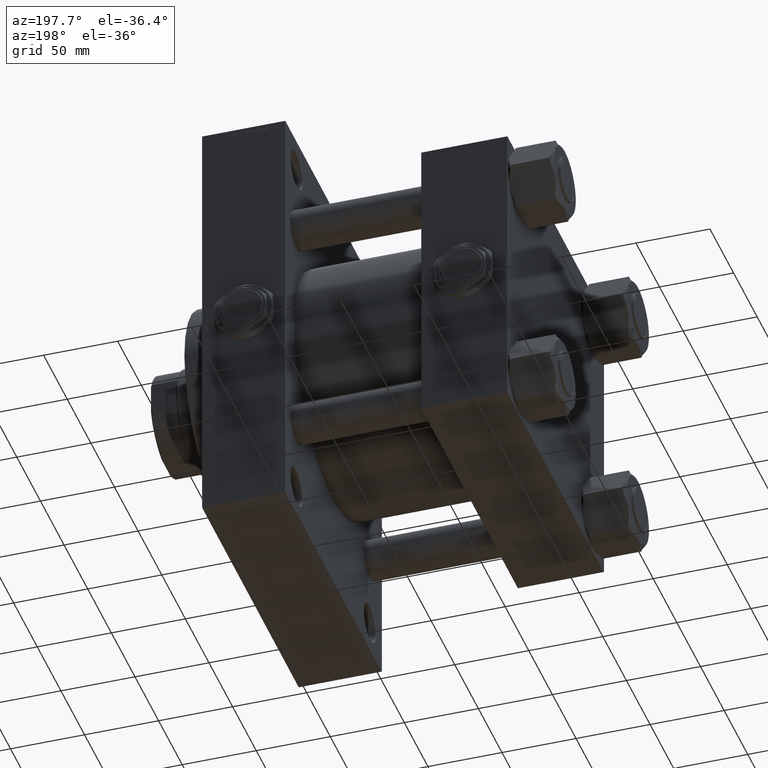
[diagram: clean part render]
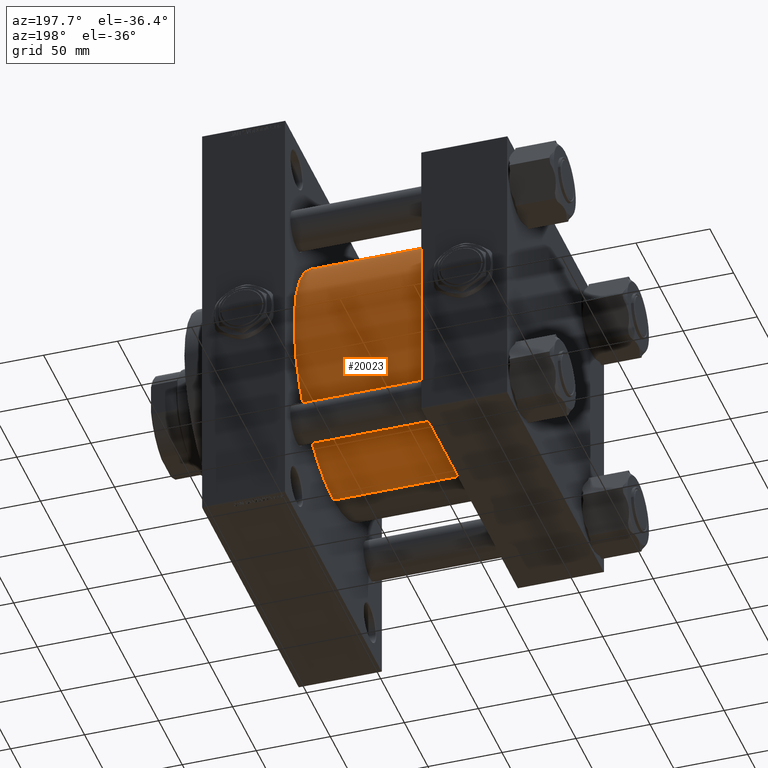
[diagram: same view with one face highlighted and labeled with its STEP entity id]
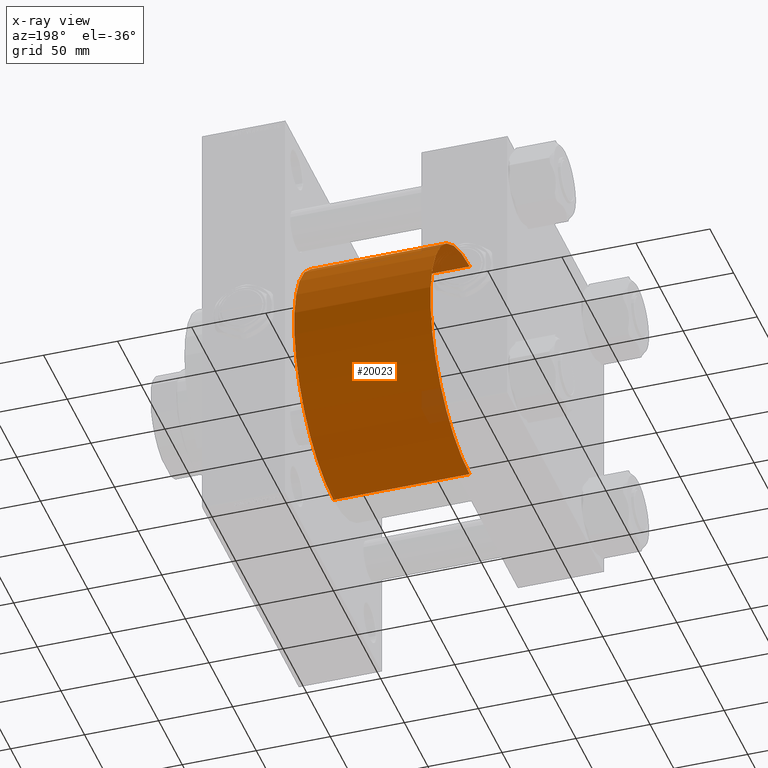
[diagram: x-ray of the same camera — body ghosted, the highlighted face saturated]
A machine part, auxiliary view. The second image highlights one B-rep face of the part: STEP entity #20023.
The next image is the same camera in x-ray: the body ghosted, the highlighted face saturated — about 5% of this face is hidden behind the body in this view.
In plain terms, the highlighted cylindrical surface (partial cylindrical patch) has radius 83 mm, axis along (-1, -0, -0).
Its self-contained STEP definition (entity closure, byte-faithful):
#330 = AXIS2_PLACEMENT_3D ( 'NONE', #44004, #24853, #47525 ) ;
#830 = EDGE_CURVE ( 'NONE', #9863, #6707, #6669, .T. ) ;
#1291 = VECTOR ( 'NONE', #18792, 1000.000000000000000 ) ;
#1796 = ORIENTED_EDGE ( 'NONE', *, *, #36290, .T. ) ;
#3419 = LINE ( 'NONE', #19038, #1291 ) ;
#3793 = ORIENTED_EDGE ( 'NONE', *, *, #830, .F. ) ;
#6669 = LINE ( 'NONE', #6919, #40367 ) ;
#6707 = VERTEX_POINT ( 'NONE', #48949 ) ;
#6919 = CARTESIAN_POINT ( 'NONE',  ( 150.0000000000000000, -2.602085213965210642E-15, 83.00000000000000000 ) ) ;
#7299 = AXIS2_PLACEMENT_3D ( 'NONE', #22396, #37267, #44832 ) ;
#7481 = ORIENTED_EDGE ( 'NONE', *, *, #27931, .F. ) ;
#9863 = VERTEX_POINT ( 'NONE', #42858 ) ;
#18792 = DIRECTION ( 'NONE',  ( -1.000000000000000000, -0.000000000000000000, -0.000000000000000000 ) ) ;
#19038 = CARTESIAN_POINT ( 'NONE',  ( 150.0000000000000000, 7.562483218957820855E-15, -83.00000000000000000 ) ) ;
#20023 = ADVANCED_FACE ( 'NONE', ( #25613 ), #44520, .T. ) ;
#21094 = DIRECTION ( 'NONE',  ( -1.000000000000000000, -0.000000000000000000, -0.000000000000000000 ) ) ;
#21612 = AXIS2_PLACEMENT_3D ( 'NONE', #28652, #21094, #48056 ) ;
#22236 = EDGE_LOOP ( 'NONE', ( #7481, #33147, #1796, #3793 ) ) ;
#22396 = CARTESIAN_POINT ( 'NONE',  ( 150.0000000000000000, -2.602085213965210642E-15, 0.000000000000000000 ) ) ;
#23212 = VERTEX_POINT ( 'NONE', #42152 ) ;
#24853 = DIRECTION ( 'NONE',  ( 1.000000000000000000, -0.000000000000000000, -0.000000000000000000 ) ) ;
#25082 = VERTEX_POINT ( 'NONE', #26739 ) ;
#25613 = FACE_OUTER_BOUND ( 'NONE', #22236, .T. ) ;
#26739 = CARTESIAN_POINT ( 'NONE',  ( 150.0000000000000000, 7.562483218957820855E-15, -83.00000000000000000 ) ) ;
#27931 = EDGE_CURVE ( 'NONE', #25082, #9863, #43508, .T. ) ;
#28652 = CARTESIAN_POINT ( 'NONE',  ( 150.0000000000000000, -2.602085213965210642E-15, 0.000000000000000000 ) ) ;
#33147 = ORIENTED_EDGE ( 'NONE', *, *, #42005, .T. ) ;
#36290 = EDGE_CURVE ( 'NONE', #23212, #6707, #43794, .T. ) ;
#37267 = DIRECTION ( 'NONE',  ( 1.000000000000000000, 0.000000000000000000, 0.000000000000000000 ) ) ;
#37648 = DIRECTION ( 'NONE',  ( -1.000000000000000000, -0.000000000000000000, -0.000000000000000000 ) ) ;
#40367 = VECTOR ( 'NONE', #37648, 1000.000000000000000 ) ;
#42005 = EDGE_CURVE ( 'NONE', #25082, #23212, #3419, .T. ) ;
#42152 = CARTESIAN_POINT ( 'NONE',  ( 57.99999999999999289, 7.562483218957820855E-15, -83.00000000000000000 ) ) ;
#42858 = CARTESIAN_POINT ( 'NONE',  ( 150.0000000000000000, -2.602085213965210642E-15, 83.00000000000000000 ) ) ;
#43508 = CIRCLE ( 'NONE', #7299, 83.00000000000000000 ) ;
#43794 = CIRCLE ( 'NONE', #330, 83.00000000000000000 ) ;
#44004 = CARTESIAN_POINT ( 'NONE',  ( 57.99999999999999289, -2.602085213965210642E-15, 0.000000000000000000 ) ) ;
#44520 = CYLINDRICAL_SURFACE ( 'NONE', #21612, 83.00000000000000000 ) ;
#44832 = DIRECTION ( 'NONE',  ( 0.000000000000000000, 0.000000000000000000, -1.000000000000000000 ) ) ;
#47525 = DIRECTION ( 'NONE',  ( 0.000000000000000000, 0.000000000000000000, 1.000000000000000000 ) ) ;
#48056 = DIRECTION ( 'NONE',  ( 0.000000000000000000, 0.000000000000000000, 1.000000000000000000 ) ) ;
#48949 = CARTESIAN_POINT ( 'NONE',  ( 57.99999999999999289, -2.602085213965210642E-15, 83.00000000000000000 ) ) ;